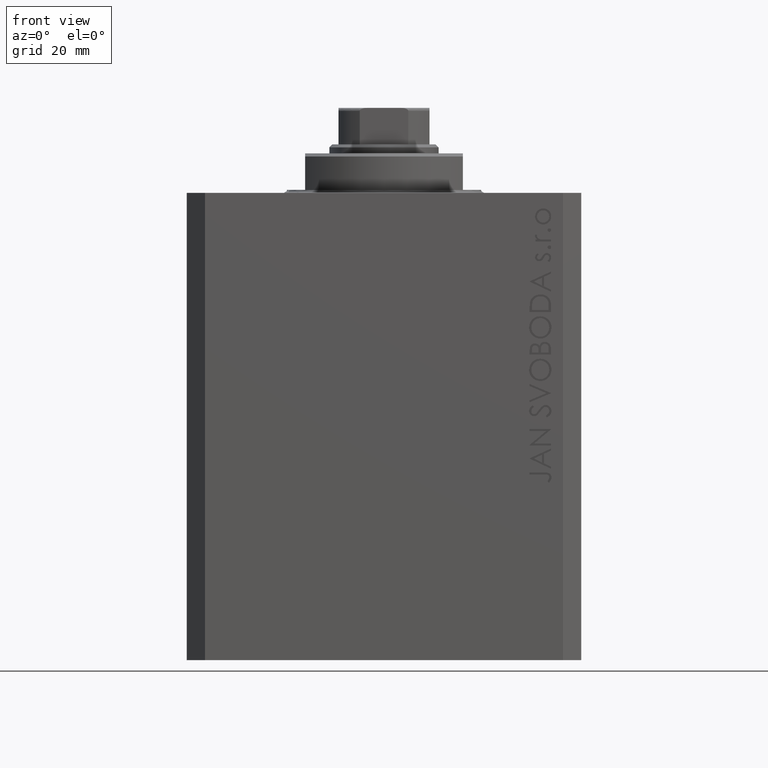
[diagram: clean part render]
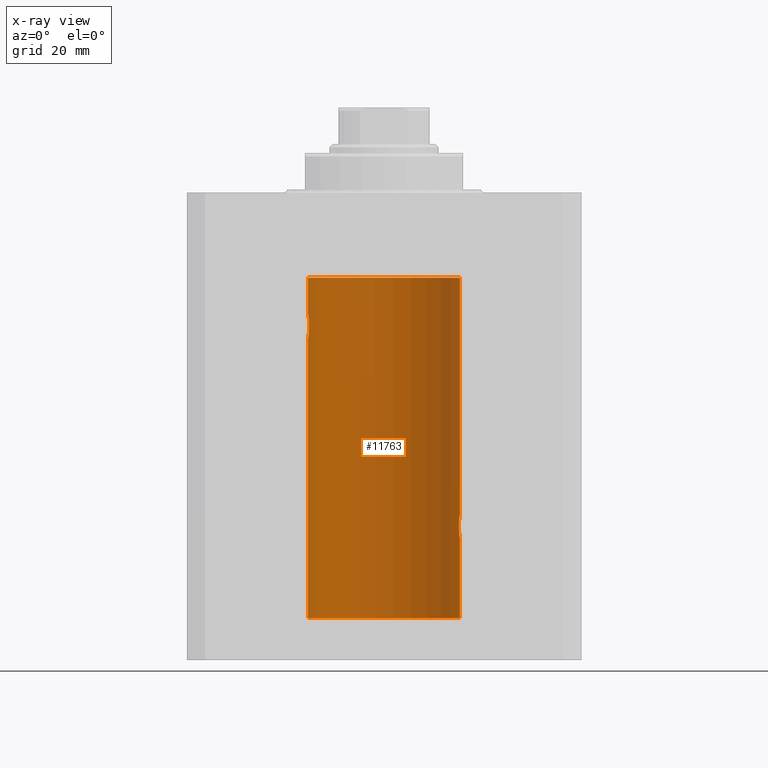
[diagram: x-ray — body ghosted, one internal face saturated and labeled with its STEP entity id]
A machine part, front view, then the same camera in x-ray: the body is ghosted and one INTERNAL B-rep face — a face not visible from any outside direction — is saturated and labeled: STEP entity #11763.
In plain terms, the highlighted cylindrical surface (partial cylindrical patch) has radius 12.5 mm, axis along (0, 0, 1).
Its self-contained STEP definition (entity closure, byte-faithful):
#306 = ORIENTED_EDGE ( 'NONE', *, *, #26239, .T. ) ;
#324 = EDGE_CURVE ( 'NONE', #33418, #35441, #12074, .T. ) ;
#617 = CARTESIAN_POINT ( 'NONE',  ( -12.50000000000000000, 1.530808426276628993E-15, -23.99999999999999645 ) ) ;
#832 = CARTESIAN_POINT ( 'NONE',  ( -12.48394649977302073, 0.6448065707253024526, -23.89773031393659153 ) ) ;
#1053 = CARTESIAN_POINT ( 'NONE',  ( -12.50000000000000533, 0.1306394121199390135, -24.00000000000000711 ) ) ;
#1486 = CARTESIAN_POINT ( 'NONE',  ( -12.35517291625592051, 1.897967064543089721, -22.64415233770293412 ) ) ;
#2415 = ORIENTED_EDGE ( 'NONE', *, *, #324, .T. ) ;
#2823 = AXIS2_PLACEMENT_3D ( 'NONE', #30927, #20745, #14182 ) ;
#3135 = CARTESIAN_POINT ( 'NONE',  ( 12.35520276972935250, 1.897773362058245761, -54.35528278634336630 ) ) ;
#3294 = CARTESIAN_POINT ( 'NONE',  ( 0.000000000000000000, 0.000000000000000000, -13.99999999999999822 ) ) ;
#3428 = VERTEX_POINT ( 'NONE', #18107 ) ;
#3441 = ORIENTED_EDGE ( 'NONE', *, *, #25399, .T. ) ;
#3806 = CARTESIAN_POINT ( 'NONE',  ( 12.50000000000000000, -7.266276684081261841E-23, -53.00000000000000000 ) ) ;
#4222 = CARTESIAN_POINT ( 'NONE',  ( -12.43034574091277911, 1.321095788880539024, -23.50733550364322255 ) ) ;
#4440 = CARTESIAN_POINT ( 'NONE',  ( -12.39873273758732175, 1.598680238462371062, -20.77033506126851137 ) ) ;
#4928 = DIRECTION ( 'NONE',  ( -0.000000000000000000, -0.000000000000000000, 1.000000000000000000 ) ) ;
#5450 = VECTOR ( 'NONE', #25653, 1000.000000000000000 ) ;
#6535 = CARTESIAN_POINT ( 'NONE',  ( 12.50000000000000178, 0.1324055009716459952, -56.99999999999999289 ) ) ;
#6743 = CARTESIAN_POINT ( 'NONE',  ( 12.48395395845270528, 0.6446573166014708534, -53.10222124213520090 ) ) ;
#6998 = CARTESIAN_POINT ( 'NONE',  ( 12.39869754437268767, 1.598954131913735033, -56.22932152813014284 ) ) ;
#7390 = CARTESIAN_POINT ( 'NONE',  ( -12.34922241902463114, 1.935814255713574239, -22.51937350851555308 ) ) ;
#7468 = CIRCLE ( 'NONE', #32735, 12.50000000000000000 ) ;
#7619 = CARTESIAN_POINT ( 'NONE',  ( -12.46009879577771606, 1.003863686549169465, -23.73470742397611843 ) ) ;
#7623 = ORIENTED_EDGE ( 'NONE', *, *, #39806, .T. ) ;
#7833 = CARTESIAN_POINT ( 'NONE',  ( -12.49788564268284041, 0.2633501011236127343, -23.98690384766255335 ) ) ;
#7981 = VECTOR ( 'NONE', #4928, 1000.000000000000000 ) ;
#9913 = CARTESIAN_POINT ( 'NONE',  ( 12.40916530024876963, 1.507117913375724649, -53.67865955049006033 ) ) ;
#10155 = CARTESIAN_POINT ( 'NONE',  ( 12.49789833780794268, 0.2625555164371063399, -56.98698170822144959 ) ) ;
#10305 = EDGE_CURVE ( 'NONE', #33418, #37340, #33857, .T. ) ;
#10349 = CYLINDRICAL_SURFACE ( 'NONE', #2823, 12.50000000000000000 ) ;
#10360 = CARTESIAN_POINT ( 'NONE',  ( 12.46910683544638232, 0.8866026273585057016, -53.20247863689694157 ) ) ;
#10515 = DIRECTION ( 'NONE',  ( 1.000000000000000000, 0.000000000000000000, 0.000000000000000000 ) ) ;
#10584 = CARTESIAN_POINT ( 'NONE',  ( 12.43037348241797879, 1.320834183883846435, -53.49243837704294435 ) ) ;
#10594 = CARTESIAN_POINT ( 'NONE',  ( -12.50000000000000000, 1.530808498934191521E-15, -70.09999999999999432 ) ) ;
#10804 = CARTESIAN_POINT ( 'NONE',  ( 12.34110728646152211, 1.986893050944461780, -54.73661347764981144 ) ) ;
#10948 = VERTEX_POINT ( 'NONE', #29475 ) ;
#10999 = CARTESIAN_POINT ( 'NONE',  ( -12.39864157855465088, 1.590288205413973532, -23.21980790594580313 ) ) ;
#11069 = DIRECTION ( 'NONE',  ( 1.000000000000000000, 0.000000000000000000, 0.000000000000000000 ) ) ;
#11763 = ADVANCED_FACE ( 'NONE', ( #24150 ), #10349, .F. ) ;
#12074 = LINE ( 'NONE', #29045, #5450 ) ;
#12488 = CARTESIAN_POINT ( 'NONE',  ( 12.50000000000000000, -7.266276684081261841E-23, -53.00000000000000000 ) ) ;
#13328 = VECTOR ( 'NONE', #13369, 1000.000000000000000 ) ;
#13369 = DIRECTION ( 'NONE',  ( -0.000000000000000000, -0.000000000000000000, 1.000000000000000000 ) ) ;
#13546 = CARTESIAN_POINT ( 'NONE',  ( 12.33896267925302581, 2.000000000000254907, -55.26143174220785426 ) ) ;
#14182 = DIRECTION ( 'NONE',  ( 1.000000000000000000, 0.000000000000000000, 0.000000000000000000 ) ) ;
#14389 = CARTESIAN_POINT ( 'NONE',  ( -12.50000000000000000, 1.530808426276628993E-15, -23.99999999999999645 ) ) ;
#14727 = EDGE_CURVE ( 'NONE', #10948, #3428, #29570, .T. ) ;
#14837 = CARTESIAN_POINT ( 'NONE',  ( -12.49789934882883458, 0.2624928479599910047, -20.01301208516349917 ) ) ;
#15151 = CARTESIAN_POINT ( 'NONE',  ( 12.50000000000000000, 0.000000000000000000, -13.99999999999999822 ) ) ;
#15457 = VERTEX_POINT ( 'NONE', #12488 ) ;
#15999 = ORIENTED_EDGE ( 'NONE', *, *, #10305, .F. ) ;
#16955 = VERTEX_POINT ( 'NONE', #29964 ) ;
#17132 = CARTESIAN_POINT ( 'NONE',  ( 12.49788668346400122, 0.2632864803365719264, -53.01308975838332316 ) ) ;
#18107 = CARTESIAN_POINT ( 'NONE',  ( -12.50000000000000000, 1.530808498934191521E-15, -13.99999999999999822 ) ) ;
#18228 = CARTESIAN_POINT ( 'NONE',  ( -12.46909283808506430, 0.8868029758979402155, -23.79742491916155345 ) ) ;
#18454 = CARTESIAN_POINT ( 'NONE',  ( -12.48390768591463207, 0.6455696738844916016, -20.10252270298193977 ) ) ;
#19129 = EDGE_CURVE ( 'NONE', #16955, #15457, #38194, .T. ) ;
#20322 = CARTESIAN_POINT ( 'NONE',  ( 12.48989642018887203, 0.5185418732824298438, -56.93601292187604912 ) ) ;
#20563 = CARTESIAN_POINT ( 'NONE',  ( 12.50000000000000000, 0.000000000000000000, -70.09999999999999432 ) ) ;
#20745 = DIRECTION ( 'NONE',  ( -0.000000000000000000, -0.000000000000000000, 1.000000000000000000 ) ) ;
#20780 = CARTESIAN_POINT ( 'NONE',  ( 12.48390005916862933, 0.6457215011736597843, -56.89742771554266199 ) ) ;
#21183 = CARTESIAN_POINT ( 'NONE',  ( -12.37018026341338839, 1.797558627508998086, -22.88656313533016373 ) ) ;
#21343 = VERTEX_POINT ( 'NONE', #617 ) ;
#21404 = CARTESIAN_POINT ( 'NONE',  ( -12.50000000000000000, 1.867773856434666690E-17, -20.00000000000000000 ) ) ;
#21465 = CARTESIAN_POINT ( 'NONE',  ( 0.000000000000000000, 0.000000000000000000, -70.09999999999999432 ) ) ;
#21676 = LINE ( 'NONE', #25737, #37026 ) ;
#21843 = CARTESIAN_POINT ( 'NONE',  ( -12.34781876294798053, 1.947190906025043633, -21.47436412829509678 ) ) ;
#21856 = CARTESIAN_POINT ( 'NONE',  ( 12.50000000000000000, -3.070791583031755813E-15, -57.00000000000000000 ) ) ;
#22862 = ORIENTED_EDGE ( 'NONE', *, *, #14727, .F. ) ;
#23707 = CARTESIAN_POINT ( 'NONE',  ( 12.48983962833819028, 0.5199974825204922713, -53.06435160808016605 ) ) ;
#23932 = CARTESIAN_POINT ( 'NONE',  ( 12.50000000000000000, 0.1306079576516677443, -52.99999999999999289 ) ) ;
#23957 = CARTESIAN_POINT ( 'NONE',  ( 12.33896267925302581, 2.000000000000254463, -55.00000000000000000 ) ) ;
#24150 = FACE_OUTER_BOUND ( 'NONE', #35523, .T. ) ;
#24459 = AXIS2_PLACEMENT_3D ( 'NONE', #21465, #24872, #11069 ) ;
#24584 = CARTESIAN_POINT ( 'NONE',  ( -12.46903010196599304, 0.8876934327478135378, -20.20300788371381984 ) ) ;
#24602 = CARTESIAN_POINT ( 'NONE',  ( 12.44079117518645461, 1.220047488436375227, -53.40989676335082237 ) ) ;
#24804 = CARTESIAN_POINT ( 'NONE',  ( -12.44076681548080288, 1.220297236145718944, -23.58991408680628155 ) ) ;
#24872 = DIRECTION ( 'NONE',  ( 0.000000000000000000, 0.000000000000000000, 1.000000000000000000 ) ) ;
#25240 = CARTESIAN_POINT ( 'NONE',  ( -12.46021263690096958, 1.002494658017156981, -20.26446744561863156 ) ) ;
#25399 = EDGE_CURVE ( 'NONE', #35441, #16955, #37407, .T. ) ;
#25457 = CARTESIAN_POINT ( 'NONE',  ( -12.48983485452574982, 0.5201193324741355539, -23.93561774521849372 ) ) ;
#25653 = DIRECTION ( 'NONE',  ( -0.000000000000000000, -0.000000000000000000, 1.000000000000000000 ) ) ;
#25737 = CARTESIAN_POINT ( 'NONE',  ( 12.50000000000000000, 0.000000000000000000, -70.09999999999999432 ) ) ;
#26060 = ORIENTED_EDGE ( 'NONE', *, *, #19129, .T. ) ;
#26239 = EDGE_CURVE ( 'NONE', #15457, #33127, #21676, .T. ) ;
#27780 = CARTESIAN_POINT ( 'NONE',  ( 12.33896267925302226, 2.000000000000254463, -54.86934705949917657 ) ) ;
#27783 = EDGE_CURVE ( 'NONE', #33127, #3428, #7468, .T. ) ;
#27821 = ORIENTED_EDGE ( 'NONE', *, *, #27783, .T. ) ;
#28853 = CARTESIAN_POINT ( 'NONE',  ( -12.44082361696003503, 1.219754986802281449, -20.40963319990594016 ) ) ;
#29045 = CARTESIAN_POINT ( 'NONE',  ( 12.50000000000000000, 0.000000000000000000, -70.09999999999999432 ) ) ;
#29475 = CARTESIAN_POINT ( 'NONE',  ( -12.50000000000000000, 1.867773856434666690E-17, -20.00000000000000000 ) ) ;
#29570 = LINE ( 'NONE', #39322, #7981 ) ;
#29964 = CARTESIAN_POINT ( 'NONE',  ( 12.33896267925302581, 2.000000000000254463, -55.00000000000000000 ) ) ;
#30682 = B_SPLINE_CURVE_WITH_KNOTS ( 'NONE', 3,
 ( #21404, #41985, #14837, #39048, #18454, #24584, #25240, #28853, #32028, #4440, #35202, #21843, #35650, #38383, #42426, #7390, #1486, #21183, #34985, #10999, #42209, #4222, #24804, #7619, #18228, #832, #25457, #7833, #1053, #14389 ),
 .UNSPECIFIED., .F., .F.,
 ( 4, 2, 2, 2, 2, 2, 2, 2, 2, 2, 2, 2, 2, 2, 4 ),
 ( 1.814683826656258666E-20, 0.0003914362731607577369, 0.0007828725463215154739, 0.001174308819482273265, 0.001565745092643030948, 0.002348617638964546530, 0.003131490185286061895, 0.003522926458446825216, 0.003914362731607588103, 0.004305799004768351423, 0.004697235277929114744, 0.005088671551089878065, 0.005480107824250641385, 0.005871544097411404706, 0.006262980370572168026 ),
 .UNSPECIFIED. ) ;
#30723 = CARTESIAN_POINT ( 'NONE',  ( 12.46011632531799407, 1.003644408234889429, -53.26516799687669135 ) ) ;
#30748 = CARTESIAN_POINT ( 'NONE',  ( 12.44079900692650931, 1.220007525301745277, -56.59017579083666760 ) ) ;
#30927 = CARTESIAN_POINT ( 'NONE',  ( 0.000000000000000000, 0.000000000000000000, -70.09999999999999432 ) ) ;
#31086 = EDGE_CURVE ( 'NONE', #37340, #21343, #33961, .T. ) ;
#32028 = CARTESIAN_POINT ( 'NONE',  ( -12.43019346654084956, 1.322451657002078340, -20.49398366327208620 ) ) ;
#32735 = AXIS2_PLACEMENT_3D ( 'NONE', #3294, #44660, #10515 ) ;
#33127 = VERTEX_POINT ( 'NONE', #15151 ) ;
#33418 = VERTEX_POINT ( 'NONE', #20563 ) ;
#33857 = CIRCLE ( 'NONE', #24459, 12.50000000000000000 ) ;
#33961 = LINE ( 'NONE', #44120, #13328 ) ;
#34122 = CARTESIAN_POINT ( 'NONE',  ( 12.34924836377099844, 1.935649219704940194, -54.48002062127162759 ) ) ;
#34148 = CARTESIAN_POINT ( 'NONE',  ( 12.34779119491631150, 1.947363444907014518, -55.52502775168252214 ) ) ;
#34379 = CARTESIAN_POINT ( 'NONE',  ( 12.43016561391612029, 1.322713721413891319, -56.50578877836698410 ) ) ;
#34807 = CARTESIAN_POINT ( 'NONE',  ( 12.37760587642916477, 1.747868572747724114, -56.00639653169000098 ) ) ;
#34985 = CARTESIAN_POINT ( 'NONE',  ( -12.37922086519035325, 1.734998657226764829, -23.00335814299181436 ) ) ;
#35202 = CARTESIAN_POINT ( 'NONE',  ( -12.37764291807175354, 1.747608771958140794, -20.99316879552500481 ) ) ;
#35441 = VERTEX_POINT ( 'NONE', #21856 ) ;
#35523 = EDGE_LOOP ( 'NONE', ( #43895, #15999, #2415, #3441, #26060, #306, #27821, #22862, #7623 ) ) ;
#35650 = CARTESIAN_POINT ( 'NONE',  ( -12.33897869807161385, 1.999901172190678089, -21.73788193668374547 ) ) ;
#37026 = VECTOR ( 'NONE', #39536, 1000.000000000000000 ) ;
#37340 = VERTEX_POINT ( 'NONE', #10594 ) ;
#37407 = B_SPLINE_CURVE_WITH_KNOTS ( 'NONE', 3,
 ( #44307, #6535, #10155, #20322, #20780, #37991, #41364, #30748, #34379, #6998, #34807, #34148, #13546, #23957 ),
 .UNSPECIFIED., .F., .F.,
 ( 4, 2, 2, 2, 2, 2, 4 ),
 ( 4.122900576430715099E-18, 0.0003915305205218091544, 0.0007830610410436140804, 0.001174591561565418952, 0.001566122082087223824, 0.002349183123130847879, 0.003132244164174471934 ),
 .UNSPECIFIED. ) ;
#37733 = CARTESIAN_POINT ( 'NONE',  ( 12.37925647381943506, 1.734744884174225898, -53.99620732598648942 ) ) ;
#37967 = CARTESIAN_POINT ( 'NONE',  ( 12.39867611624532806, 1.590019252152835794, -53.77984495929610631 ) ) ;
#37991 = CARTESIAN_POINT ( 'NONE',  ( 12.46901623405144299, 0.8878913781257963267, -56.79689651717551158 ) ) ;
#38194 = B_SPLINE_CURVE_WITH_KNOTS ( 'NONE', 3,
 ( #40898, #27780, #10804, #34122, #3135, #44731, #37733, #37967, #9913, #10584, #24602, #30723, #10360, #6743, #23707, #17132, #23932, #3806 ),
 .UNSPECIFIED., .F., .F.,
 ( 4, 2, 2, 2, 2, 2, 2, 2, 4 ),
 ( 0.003132244164174471934, 0.003523586189974247697, 0.003914928215774023459, 0.004306270241573798355, 0.004697612267373574985, 0.005088954293173349880, 0.005480296318973125642, 0.005871638344772901405, 0.006262980370572677168 ),
 .UNSPECIFIED. ) ;
#38383 = CARTESIAN_POINT ( 'NONE',  ( -12.33895470450623044, 2.000049200055401766, -22.12992629360264729 ) ) ;
#39048 = CARTESIAN_POINT ( 'NONE',  ( -12.48990118705761532, 0.5184196815546056047, -20.06395648222637007 ) ) ;
#39322 = CARTESIAN_POINT ( 'NONE',  ( -12.50000000000000000, 1.530808498934191521E-15, -70.09999999999999432 ) ) ;
#39536 = DIRECTION ( 'NONE',  ( -0.000000000000000000, -0.000000000000000000, 1.000000000000000000 ) ) ;
#39806 = EDGE_CURVE ( 'NONE', #10948, #21343, #30682, .T. ) ;
#40898 = CARTESIAN_POINT ( 'NONE',  ( 12.33896267925302581, 2.000000000000254463, -55.00000000000000000 ) ) ;
#41364 = CARTESIAN_POINT ( 'NONE',  ( 12.46019522898365395, 1.002712894177340885, -56.73540896027601121 ) ) ;
#41985 = CARTESIAN_POINT ( 'NONE',  ( -12.50000000000000000, 0.1323736289504353625, -20.00000000000000000 ) ) ;
#42209 = CARTESIAN_POINT ( 'NONE',  ( -12.40913174964213184, 1.507394620545641439, -23.32102833500698225 ) ) ;
#42426 = CARTESIAN_POINT ( 'NONE',  ( -12.34109209020652465, 1.986986967296539897, -22.26269462454597914 ) ) ;
#43895 = ORIENTED_EDGE ( 'NONE', *, *, #31086, .F. ) ;
#44120 = CARTESIAN_POINT ( 'NONE',  ( -12.50000000000000000, 1.530808498934191521E-15, -70.09999999999999432 ) ) ;
#44307 = CARTESIAN_POINT ( 'NONE',  ( 12.50000000000000000, -3.070791583031755813E-15, -57.00000000000000000 ) ) ;
#44660 = DIRECTION ( 'NONE',  ( 0.000000000000000000, 0.000000000000000000, 1.000000000000000000 ) ) ;
#44731 = CARTESIAN_POINT ( 'NONE',  ( 12.37021546997940113, 1.797317011867410219, -54.11295119741077286 ) ) ;